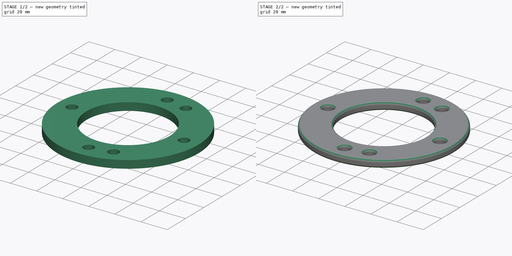
[diagram: build sequence overview — one tinted view per stage of 2, left to right]
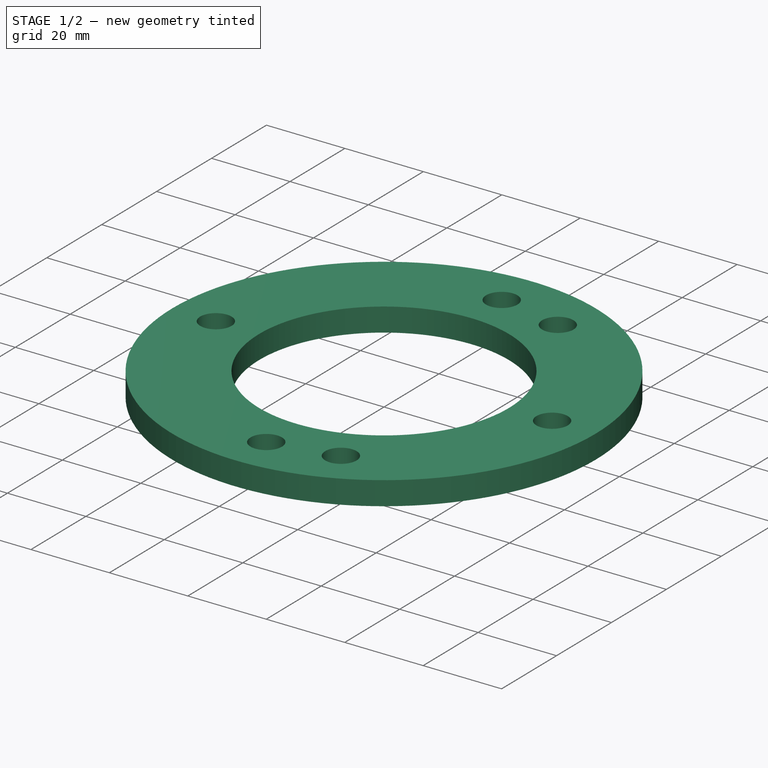
[diagram: stage 1 of 2 — iso view after this stage's code; geometry added in this stage tinted green]
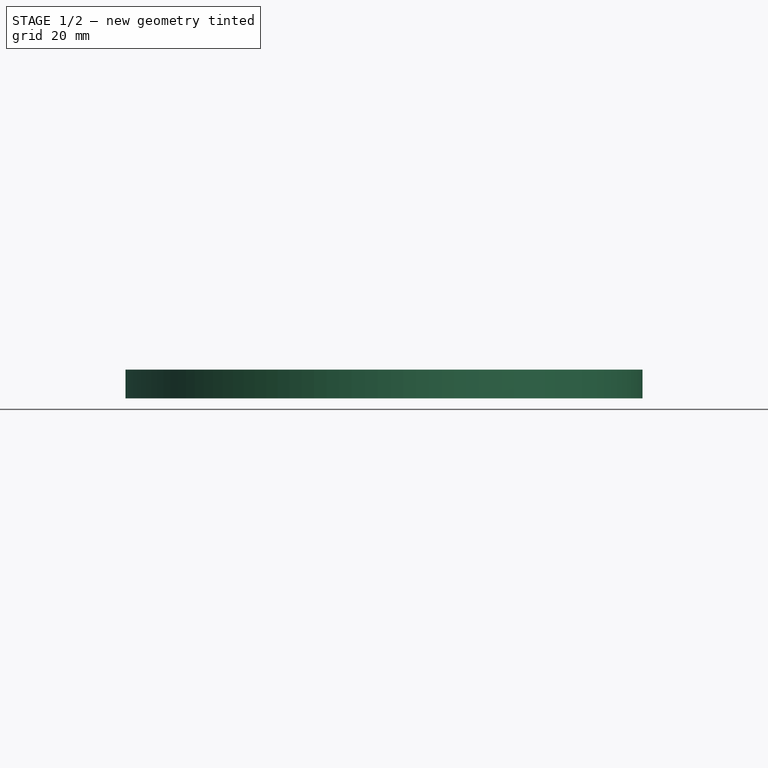
[diagram: stage 1 of 2 — front view after this stage's code; geometry added in this stage tinted green]
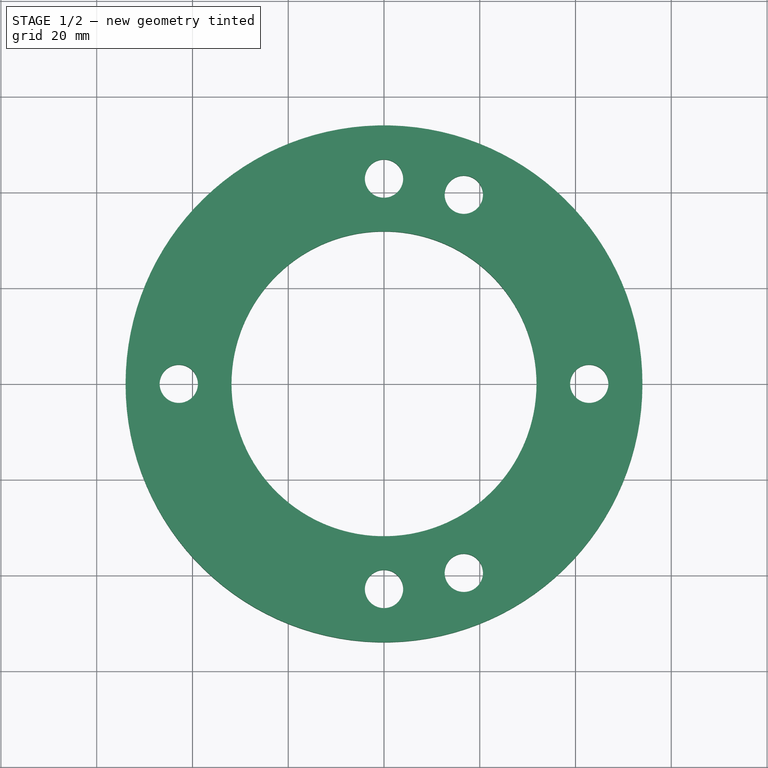
[diagram: stage 1 of 2 — top view after this stage's code; geometry added in this stage tinted green]
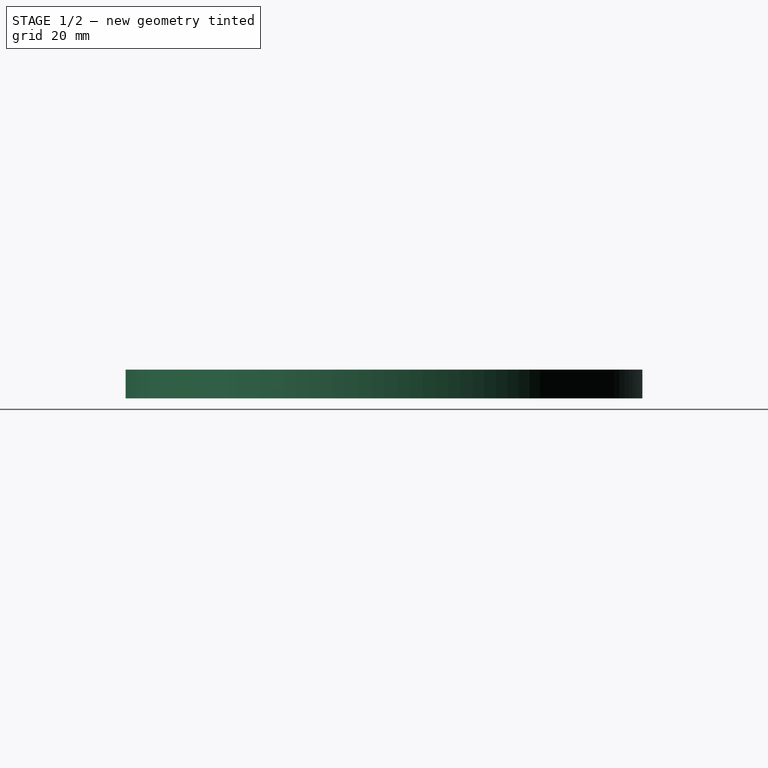
[diagram: stage 1 of 2 — right view after this stage's code; geometry added in this stage tinted green]
FCSTD DOCUMENT  (FreeCAD 0.21R33771 (Git))
Label: MastGuyCollars
License: All rights reserved
LicenseURL: http://en.wikipedia.org/wiki/All_rights_reserved
objects: Spreadsheet::Sheet×1, Sketcher::SketchObject×1, PartDesign::Pad×1, PartDesign::Fillet×1, PartDesign::Body×1, App::Part×1
note: 6 computed .brp shape members not serialized (recipe doc carries the construction recipe); baked Part::Feature solids carry a one-line shape summary decoded from their .brp

FEATURE [Spreadsheet::Sheet] Spreadsheet  label="p"
  cells = A1='inner_d; B1(inner_d)==B6 + F1; C1=44.45; D1=50.8; E1=57.15; F1=63.5; A2='ring_d; B2(ring_d)==B1 + B3 - B6; C2='Calculated; A3='ring_w; B3(ring_w)=44.45; A4='ring_t; B4(ring_t)=6; A5='guy_d; B5(guy_d)=8; A6='inner_d_c; B6(inner_d_c)=0.2
FEATURE [Sketcher::SketchObject] Sketch  label="RingSketch"
  FullyConstrained = true
  MapMode = 5
  Support = -> [XY_Plane001]
  expr: Constraints[13] = <<p>>.guy_d
  expr: Constraints[14] = <<p>>.ring_d / 2 - <<p>>.ring_w / 4
  expr: Constraints[15] = <<p>>.ring_d / 2 - <<p>>.ring_w / 4
  expr: Constraints[16] = <<p>>.ring_d / 2 - <<p>>.ring_w / 4
  expr: Constraints[17] = <<p>>.ring_d / 2 - <<p>>.ring_w / 4
  expr: Constraints[18] = <<p>>.ring_d / 2 - <<p>>.ring_w / 4
  expr: Constraints[19] = <<p>>.ring_d / 2 - <<p>>.ring_w / 4
  expr: Constraints[20] = <<p>>.ring_d / 2 - <<p>>.ring_w / 4 * cos(120)
  expr: Constraints[21] = <<p>>.ring_d / 2 - <<p>>.ring_w / 4 * cos(240)
  expr: Constraints[2] = <<p>>.inner_d
  expr: Constraints[3] = <<p>>.ring_d
  sketch-geometry (8):
    g0: Circle CenterX=0 CenterY=0 CenterZ=0 NormalX=0 NormalY=0 NormalZ=1 AngleXU=0 Radius=31.85
    g1: Circle CenterX=0 CenterY=0 CenterZ=0 NormalX=0 NormalY=0 NormalZ=1 AngleXU=0 Radius=53.975
    g2: Circle CenterX=-42.8625 CenterY=0 CenterZ=0 NormalX=0 NormalY=0 NormalZ=1 AngleXU=0 Radius=4
    g3: Circle CenterX=42.8625 CenterY=0 CenterZ=0 NormalX=0 NormalY=0 NormalZ=1 AngleXU=0 Radius=4
    g4: Circle CenterX=0 CenterY=42.8625 CenterZ=0 NormalX=0 NormalY=0 NormalZ=1 AngleXU=0 Radius=4
    g5: Circle CenterX=0 CenterY=-42.8625 CenterZ=0 NormalX=0 NormalY=0 NormalZ=1 AngleXU=0 Radius=4
    g6: Circle CenterX=16.6687 CenterY=39.4886 CenterZ=0 NormalX=0 NormalY=0 NormalZ=1 AngleXU=0 Radius=4
    g7: Circle CenterX=16.6688 CenterY=-39.4886 CenterZ=0 NormalX=0 NormalY=0 NormalZ=1 AngleXU=0 Radius=4
  constraints (22):
    c: Coincident(g0,g-1)
    c: Coincident(g1,g0)
    c: Diameter(g0) = 63.7
    c: Diameter(g1) = 107.95
    c: PointOnObject(g2,g-1)
    c: PointOnObject(g3,g-1)
    c: PointOnObject(g4,g-2)
    c: PointOnObject(g5,g-2)
    c: Equal(g4,g6)
    c: Equal(g4,g3)
    c: Equal(g4,g5)
    c: Equal(g4,g7)
    c: Equal(g4,g2)
    c: Diameter(g4) = 8
    c: DistanceY(g0,g4) = 42.8625
    c: DistanceY(g5,g0) = 42.8625
    c: DistanceX(g0,g3) = 42.8625
    c: DistanceX(g2,g0) = 42.8625
    c: Distance(g6,g0) = 42.8625
    c: Distance(g0,g7) = 42.8625
    c: DistanceX(g2,g6) = 59.5312
    c: DistanceX(g2,g7) = 59.5313
FEATURE [PartDesign::Pad] Pad  label="RingPad"
  Direction = (0,0,1)
  Length = 6
  Length2 = 10
  Profile = -> Sketch
  ReferenceAxis = -> Sketch [N_Axis]
  Type = 0
  expr: Length = <<p>>.ring_t
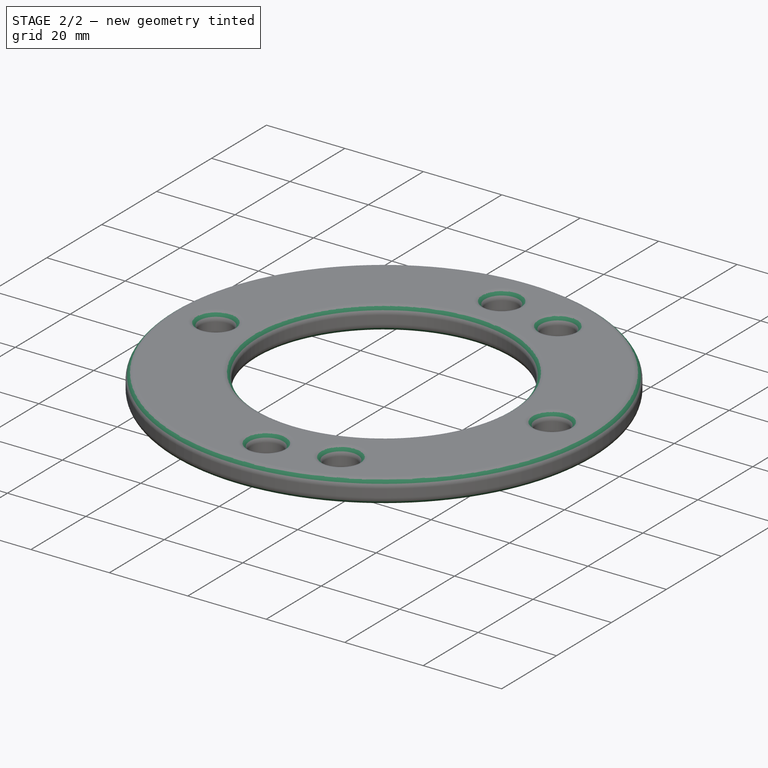
[diagram: stage 2 of 2 — iso view after this stage's code; geometry added in this stage tinted green]
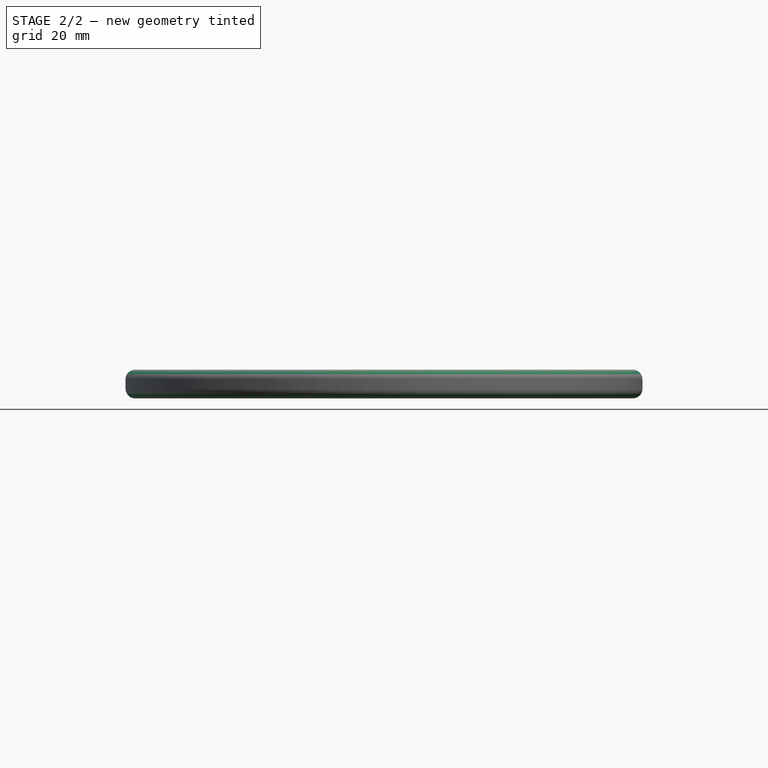
[diagram: stage 2 of 2 — front view after this stage's code; geometry added in this stage tinted green]
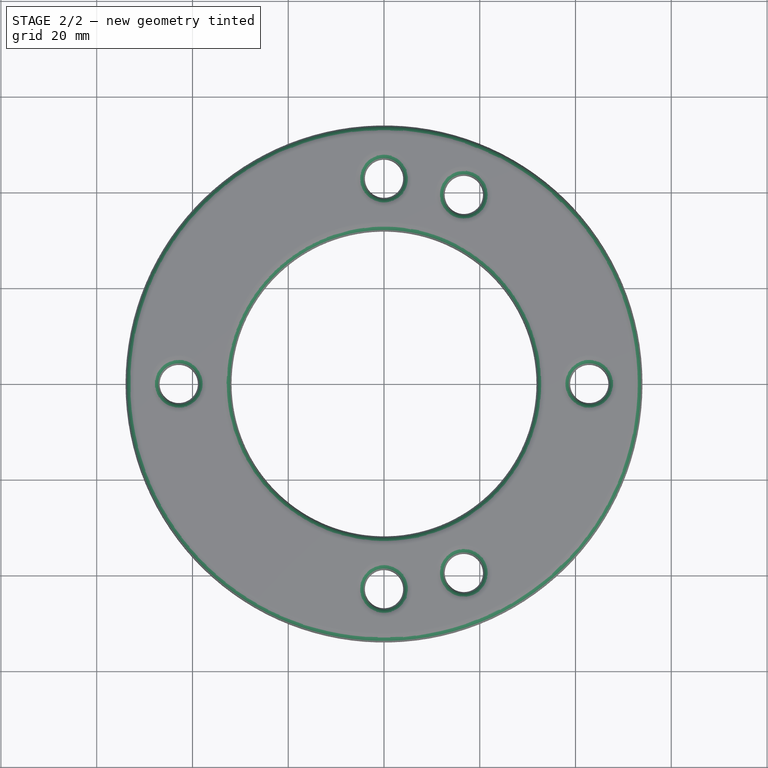
[diagram: stage 2 of 2 — top view after this stage's code; geometry added in this stage tinted green]
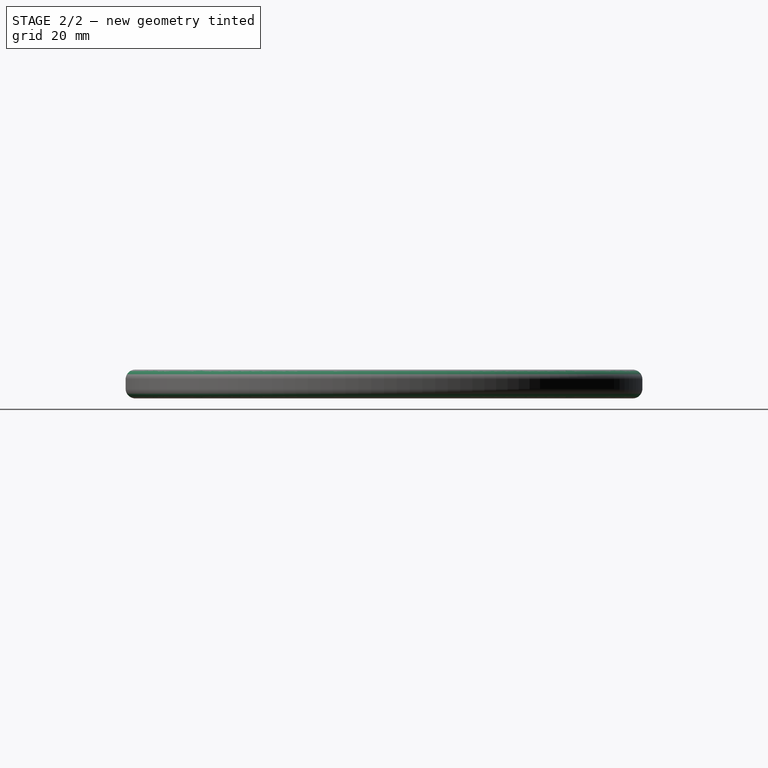
[diagram: stage 2 of 2 — right view after this stage's code; geometry added in this stage tinted green]
FEATURE [PartDesign::Fillet] Fillet  label="RingFillet"
  Base = -> Pad [Edge3,Edge2,Edge6,Edge5,Edge21,Edge15,Edge24,Edge18,Edge9,Edge12,Edge8,Edge11,Edge20,Edge14,Edge23,Edge17]
  BaseFeature = -> Pad
  Radius = 2
  SupportTransform = false
  UseAllEdges = false
FEATURE [PartDesign::Body] Body  label="MGCB"
  Group = -> [Sketch,Pad,Fillet]
  Origin = -> Origin001
  Tip = -> Fillet
FEATURE [App::Part] Part  label="MGCP"
  Group = -> [Body]
  Origin = -> Origin
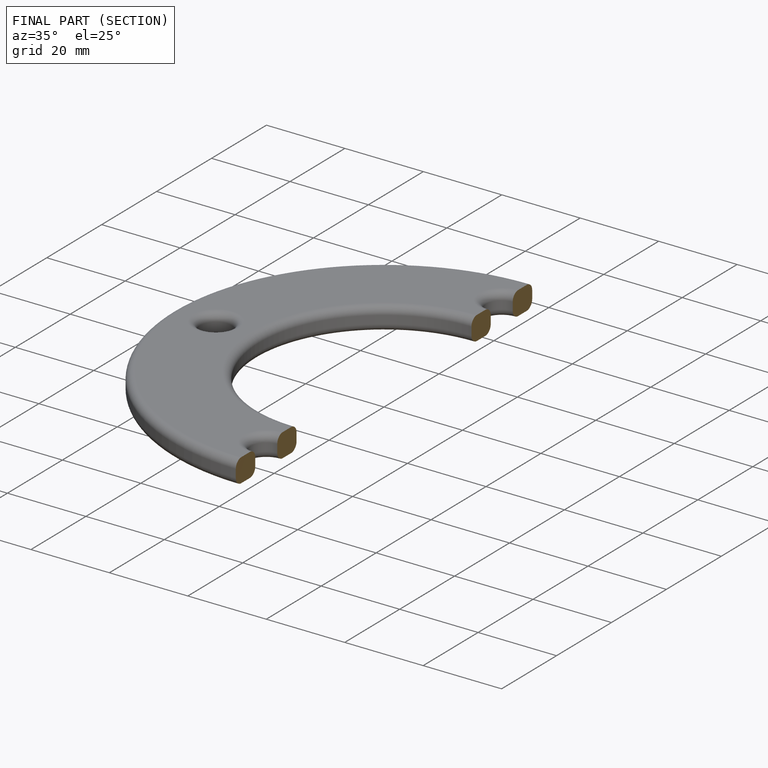
[diagram: finished part — half-section view (interior)]
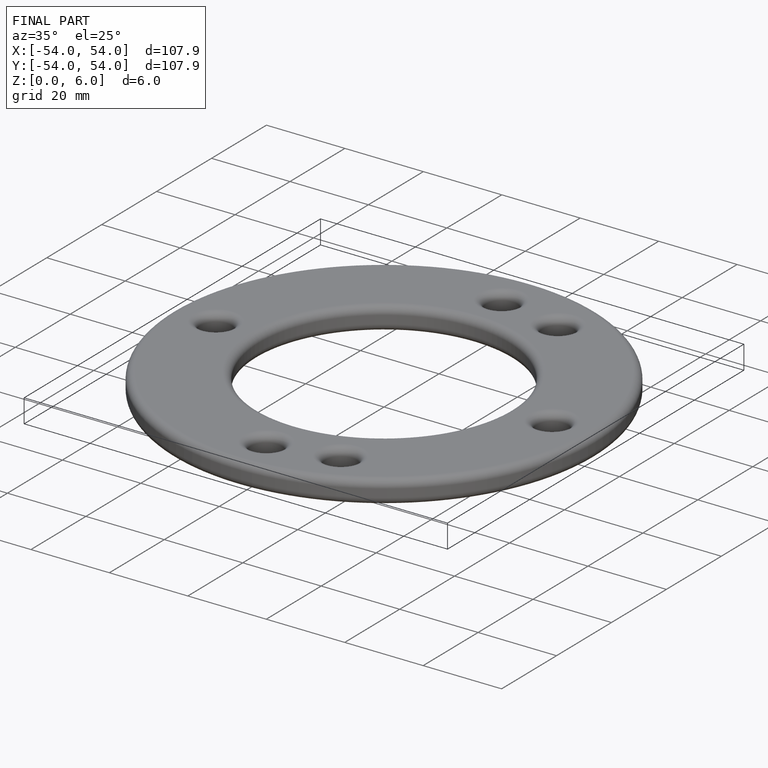
[diagram: finished part — iso view with bounding-box wireframe]
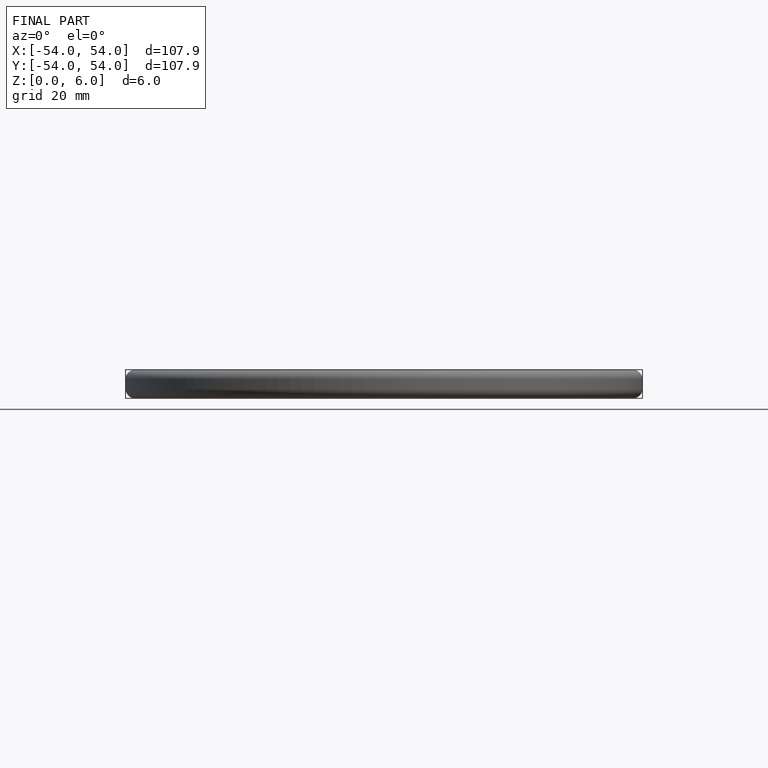
[diagram: finished part — front view with bounding-box wireframe]
